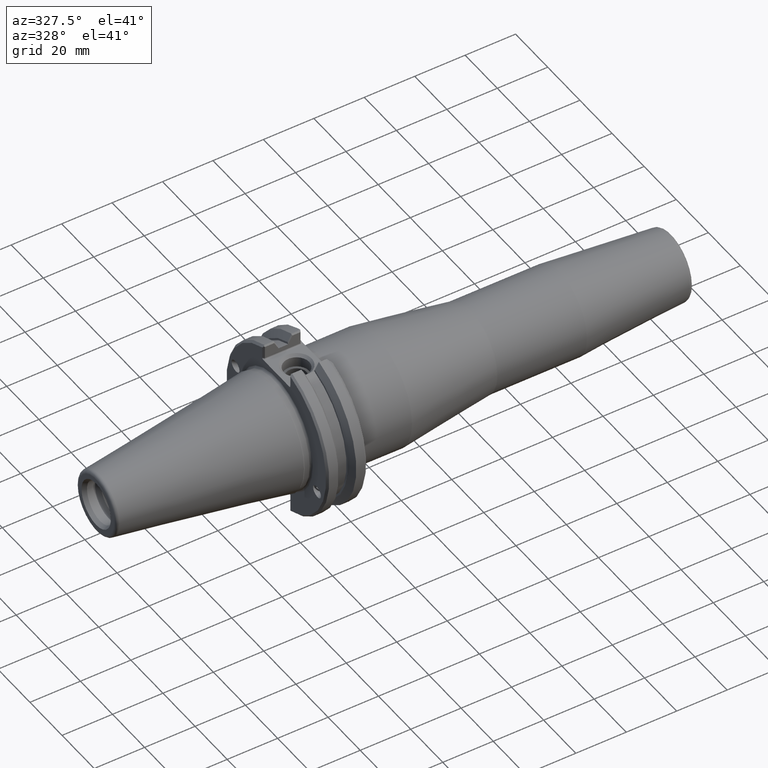
[diagram: clean part render]
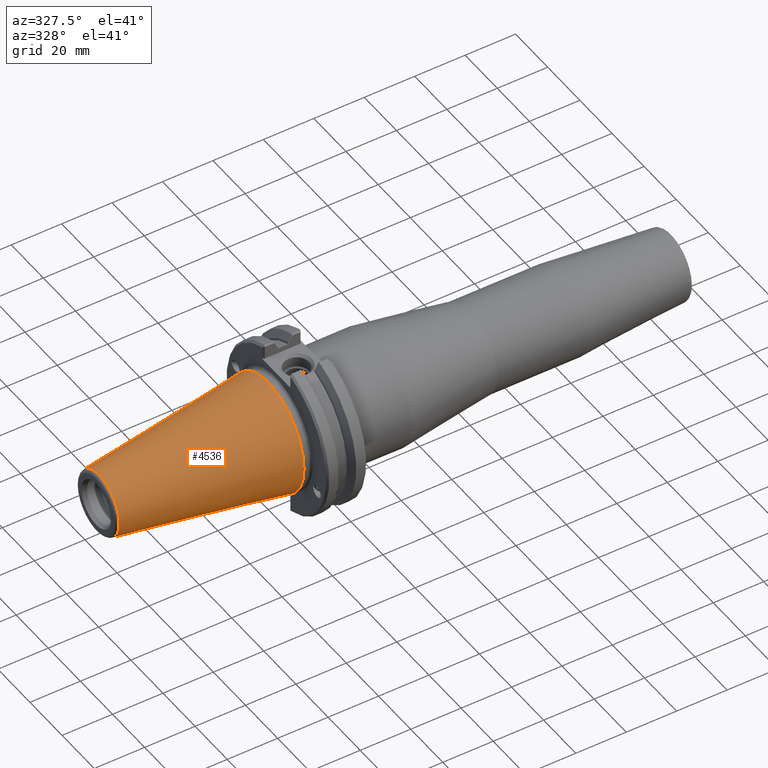
[diagram: same view with one face highlighted and labeled with its STEP entity id]
A machine part, auxiliary view. The second image highlights one B-rep face of the part: STEP entity #4536.
In plain terms, the highlighted conical surface has half-angle 8.297 deg.
Its self-contained STEP definition (entity closure, byte-faithful):
#4303=CARTESIAN_POINT('',(0.0,22.224999999999998,0.0));
#4304=VERTEX_POINT('',#4303);
#4305=CARTESIAN_POINT('',(0.0,0.0,0.0));
#4306=DIRECTION('',(1.0,1.624514E-013,0.0));
#4307=DIRECTION('',(-1.624514E-013,1.0,0.0));
#4308=AXIS2_PLACEMENT_3D('',#4305,#4306,#4307);
#4309=CIRCLE('',#4308,22.224999999999998);
#4310=EDGE_CURVE('',#4304,#4304,#4309,.T.);
#4501=CARTESIAN_POINT('',(-67.088827900437934,12.441385956103170,-3.047160E-015));
#4502=VERTEX_POINT('',#4501);
#4503=CARTESIAN_POINT('',(-67.088827900437892,2.886580E-013,-1.523580E-015));
#4504=DIRECTION('',(-1.0,0.0,0.0));
#4505=DIRECTION('',(0.0,-1.0,0.0));
#4506=AXIS2_PLACEMENT_3D('',#4503,#4504,#4505);
#4507=CIRCLE('',#4506,12.441385956102881);
#4508=EDGE_CURVE('',#4502,#4502,#4507,.T.);
#4525=CARTESIAN_POINT('',(-34.131250000000001,0.0,0.0));
#4526=DIRECTION('',(1.0,0.0,0.0));
#4527=DIRECTION('',(-1.624514E-013,1.0,0.0));
#4528=AXIS2_PLACEMENT_3D('',#4525,#4526,#4527);
#4529=CONICAL_SURFACE('',#4528,17.247614237182344,8.296999999999994);
#4530=ORIENTED_EDGE('',*,*,#4310,.F.);
#4531=EDGE_LOOP('',(#4530));
#4532=FACE_OUTER_BOUND('',#4531,.T.);
#4533=ORIENTED_EDGE('',*,*,#4508,.F.);
#4534=EDGE_LOOP('',(#4533));
#4535=FACE_BOUND('',#4534,.T.);
#4536=ADVANCED_FACE('',(#4532,#4535),#4529,.T.);